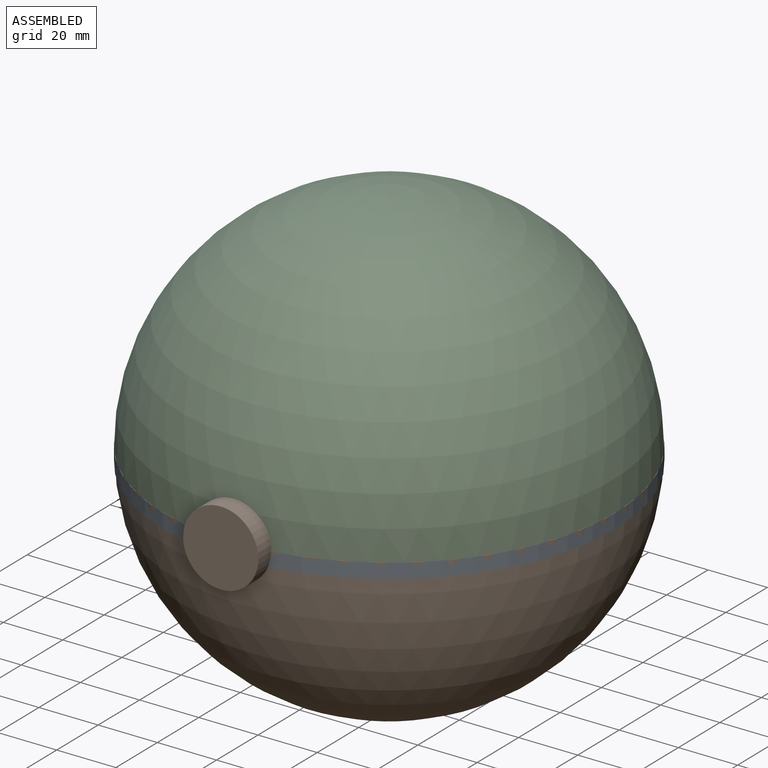
[diagram: assembled view]
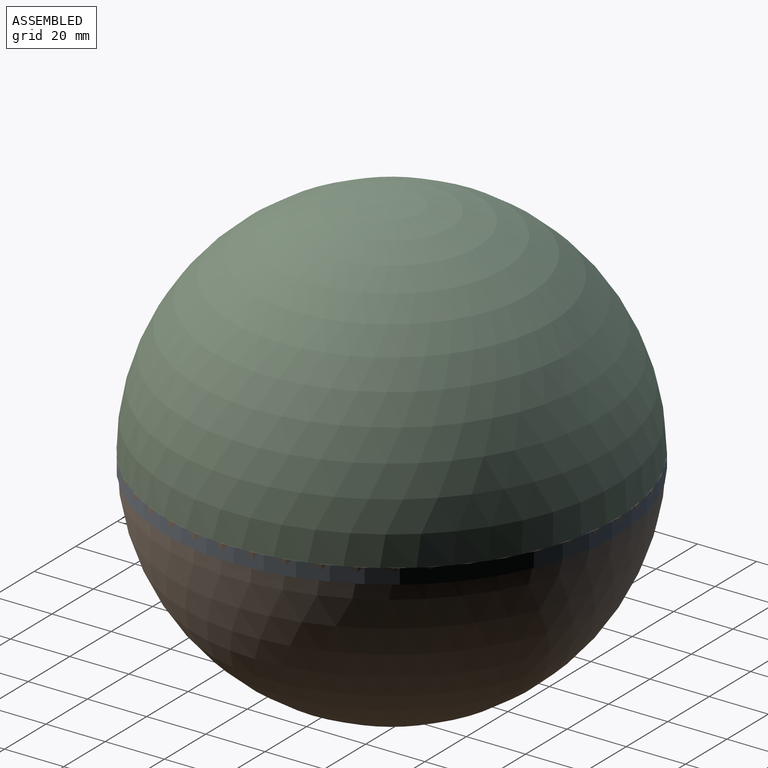
[diagram: assembled view, second angle]
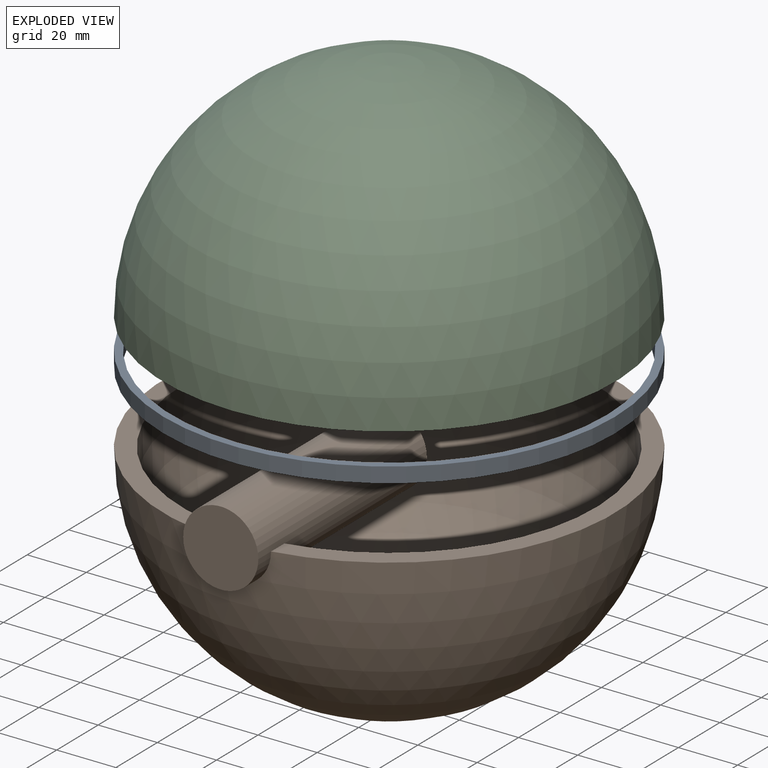
[diagram: exploded view]
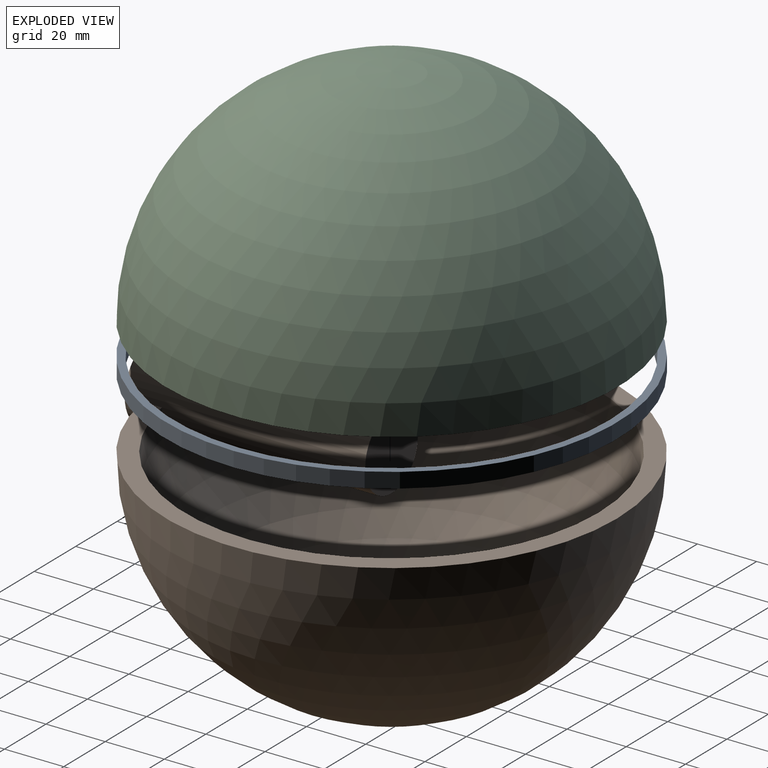
[diagram: exploded view, second angle]
ASSEMBLY  parts=3 mates=2
PART A: 4 faces, bbox 152.4x152.4x5.1 mm
  f0: cylinder r=73.66mm len=147.32mm, axis (0,0,-1), area 2351.1mm2, adj f2,f3
  f1: cylinder r=76.2mm len=152.4mm, axis (0,0,-1), area 2432.2mm2, adj f2,f3
  f2: plane 152.4x152.4mm, normal (0,0,1), area 1195.8mm2, adj f0,f1
  f3: plane 152.4x152.4mm, normal (0,0,-1), area 1195.8mm2, adj f0,f1
PART B: 6 faces, bbox 152.4x88.9x157.5 mm
  f0: cylinder r=12.7mm len=81.28mm, axis (0,0,-1), area 6228.6mm2, adj f1,f2,f3,f4,f5
  f1: plane 25.4x25.4mm, normal (0,0,1), area 506.7mm2, adj f0
  f2: plane 25.4x25.4mm, normal (0,0,-1), area 506.7mm2, adj f0
  f3: plane 152.4x151.33mm, normal (0,1,0), area 2751.5mm2, adj f0,f4,f5
  f4: sphere r=69.85mm, area 30400.3mm2, adj f0,f3
  f5: sphere r=76.2mm, area 36227.8mm2, adj f0,f3
PART C: 3 faces, bbox 152.4x76.2x152.4 mm
  f0: sphere r=69.85mm, area 30655.8mm2, adj f2
  f1: sphere r=76.2mm, area 36482.9mm2, adj f2
  f2: plane 152.4x152.4mm, normal (0,1,0), area 2913.6mm2, adj f0,f1
PLACE A t=(425.28,-65.26,80.57)mm
PLACE B rot(axis=(1,0,0),90deg) t=(0,-65.26,85.65)mm
PLACE C rot(axis=(0,-0.71,0.71),180deg) t=(-199.64,-65.26,88.12)mm
MATE fastened C.f2 <-> B.f3  axis (0,0,-1) through (0,-65.26,85.65)mm
MATE fastened A.f0 <-> B.f3  axis (0,0,1) through (0,-65.26,85.65)mm
